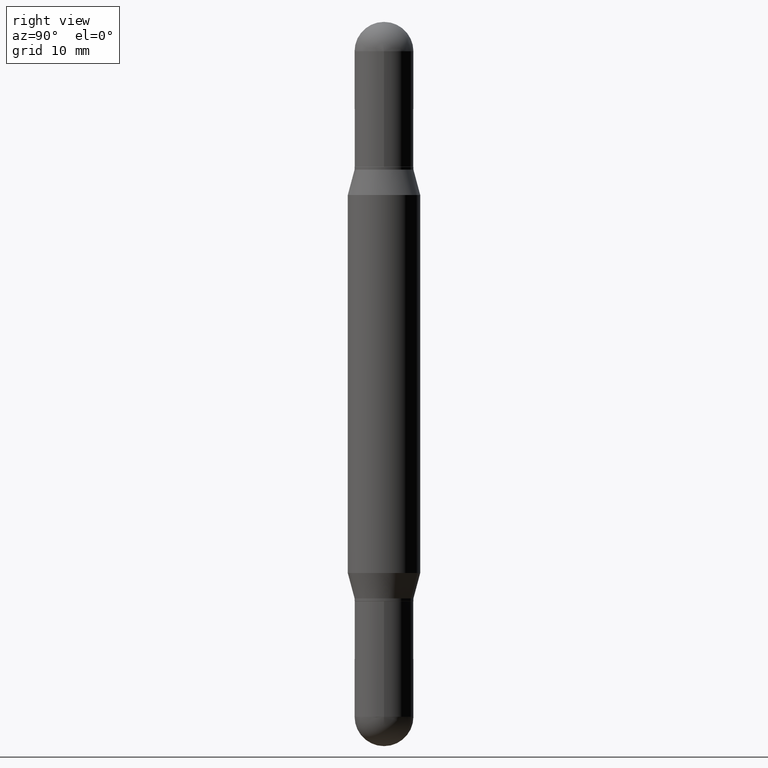
[diagram: clean part render]
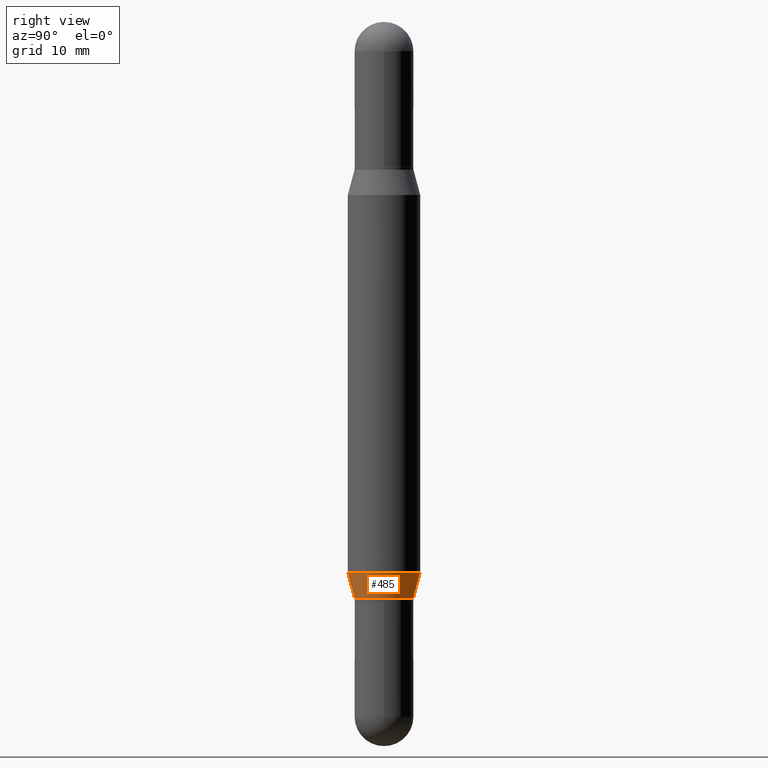
[diagram: same view with one face highlighted and labeled with its STEP entity id]
A machine part, right view. The second image highlights one B-rep face of the part: STEP entity #485.
In plain terms, the highlighted conical surface has half-angle 15 deg.
Its self-contained STEP definition (entity closure, byte-faithful):
#17 = DIRECTION ( 'NONE',  ( -1.807323732225330534E-15, -0.2588190451025182415, 0.9659258262890689783 ) ) ;
#20 = CARTESIAN_POINT ( 'NONE',  ( 7.215561481644304607E-16, 0.1015499999999930347, -1.990000000000000435 ) ) ;
#37 = DIRECTION ( 'NONE',  ( -2.445552073783824727E-29, 3.491362094902526784E-15, 1.000000000000000000 ) ) ;
#40 = LINE ( 'NONE', #273, #784 ) ;
#100 = CIRCLE ( 'NONE', #1033, 0.1250000000000000000 ) ;
#127 = DIRECTION ( 'NONE',  ( -6.982962677686266711E-15, -1.000000000000000000, 2.690150658458161914E-15 ) ) ;
#162 = VECTOR ( 'NONE', #465, 39.37007874015748143 ) ;
#184 = CARTESIAN_POINT ( 'NONE',  ( 8.575622497214719151E-16, 0.1249999999999933525, -1.902483408562510636 ) ) ;
#273 = CARTESIAN_POINT ( 'NONE',  ( -7.091198599189916755E-16, -0.1015500000000069403, -1.989999999999999769 ) ) ;
#292 = LINE ( 'NONE', #532, #162 ) ;
#366 = FACE_OUTER_BOUND ( 'NONE', #423, .T. ) ;
#387 = CARTESIAN_POINT ( 'NONE',  ( 4.866648626829811762E-29, -6.947810568856028903E-15, -1.989999999999999991 ) ) ;
#412 = CIRCLE ( 'NONE', #623, 0.1015499999999999875 ) ;
#423 = EDGE_LOOP ( 'NONE', ( #828, #793, #1044, #787 ) ) ;
#465 = DIRECTION ( 'NONE',  ( 1.839019923739600710E-15, 0.2588190451025250138, 0.9659258262890670910 ) ) ;
#469 = DIRECTION ( 'NONE',  ( -6.982962677686266711E-15, -1.000000000000000000, 2.690150658458161914E-15 ) ) ;
#485 = ADVANCED_FACE ( 'NONE', ( #366 ), #963, .T. ) ;
#532 = CARTESIAN_POINT ( 'NONE',  ( 7.215561481644301649E-16, 0.1015499999999930347, -1.990000000000000435 ) ) ;
#581 = CARTESIAN_POINT ( 'NONE',  ( 4.652622245149366935E-29, -6.642258458836105412E-15, -1.902483408562510192 ) ) ;
#585 = EDGE_CURVE ( 'NONE', #1017, #776, #412, .T. ) ;
#623 = AXIS2_PLACEMENT_3D ( 'NONE', #387, #37, #127 ) ;
#644 = CARTESIAN_POINT ( 'NONE',  ( 4.866648626829811762E-29, -6.947810568856028903E-15, -1.989999999999999991 ) ) ;
#661 = DIRECTION ( 'NONE',  ( -6.982962677686265922E-15, -1.000000000000000000, 4.370956789862821150E-15 ) ) ;
#665 = AXIS2_PLACEMENT_3D ( 'NONE', #644, #821, #469 ) ;
#775 = CARTESIAN_POINT ( 'NONE',  ( -7.091198599189916755E-16, -0.1015500000000069403, -1.989999999999999769 ) ) ;
#776 = VERTEX_POINT ( 'NONE', #20 ) ;
#784 = VECTOR ( 'NONE', #17, 39.37007874015748143 ) ;
#787 = ORIENTED_EDGE ( 'NONE', *, *, #1110, .F. ) ;
#793 = ORIENTED_EDGE ( 'NONE', *, *, #1095, .T. ) ;
#810 = EDGE_CURVE ( 'NONE', #982, #1009, #100, .T. ) ;
#821 = DIRECTION ( 'NONE',  ( -2.445552073783824727E-29, 3.491362094902526784E-15, 1.000000000000000000 ) ) ;
#828 = ORIENTED_EDGE ( 'NONE', *, *, #585, .T. ) ;
#863 = CARTESIAN_POINT ( 'NONE',  ( -8.728703347107365988E-16, -0.1250000000000066336, -1.902483408562509748 ) ) ;
#938 = DIRECTION ( 'NONE',  ( -2.445552073783824727E-29, 3.491362094902526784E-15, 1.000000000000000000 ) ) ;
#963 = CONICAL_SURFACE ( 'NONE', #665, 0.1015499999999999875, 0.2617993877991502960 ) ;
#982 = VERTEX_POINT ( 'NONE', #863 ) ;
#1009 = VERTEX_POINT ( 'NONE', #184 ) ;
#1017 = VERTEX_POINT ( 'NONE', #775 ) ;
#1033 = AXIS2_PLACEMENT_3D ( 'NONE', #581, #938, #661 ) ;
#1044 = ORIENTED_EDGE ( 'NONE', *, *, #810, .F. ) ;
#1095 = EDGE_CURVE ( 'NONE', #776, #1009, #292, .T. ) ;
#1110 = EDGE_CURVE ( 'NONE', #1017, #982, #40, .T. ) ;